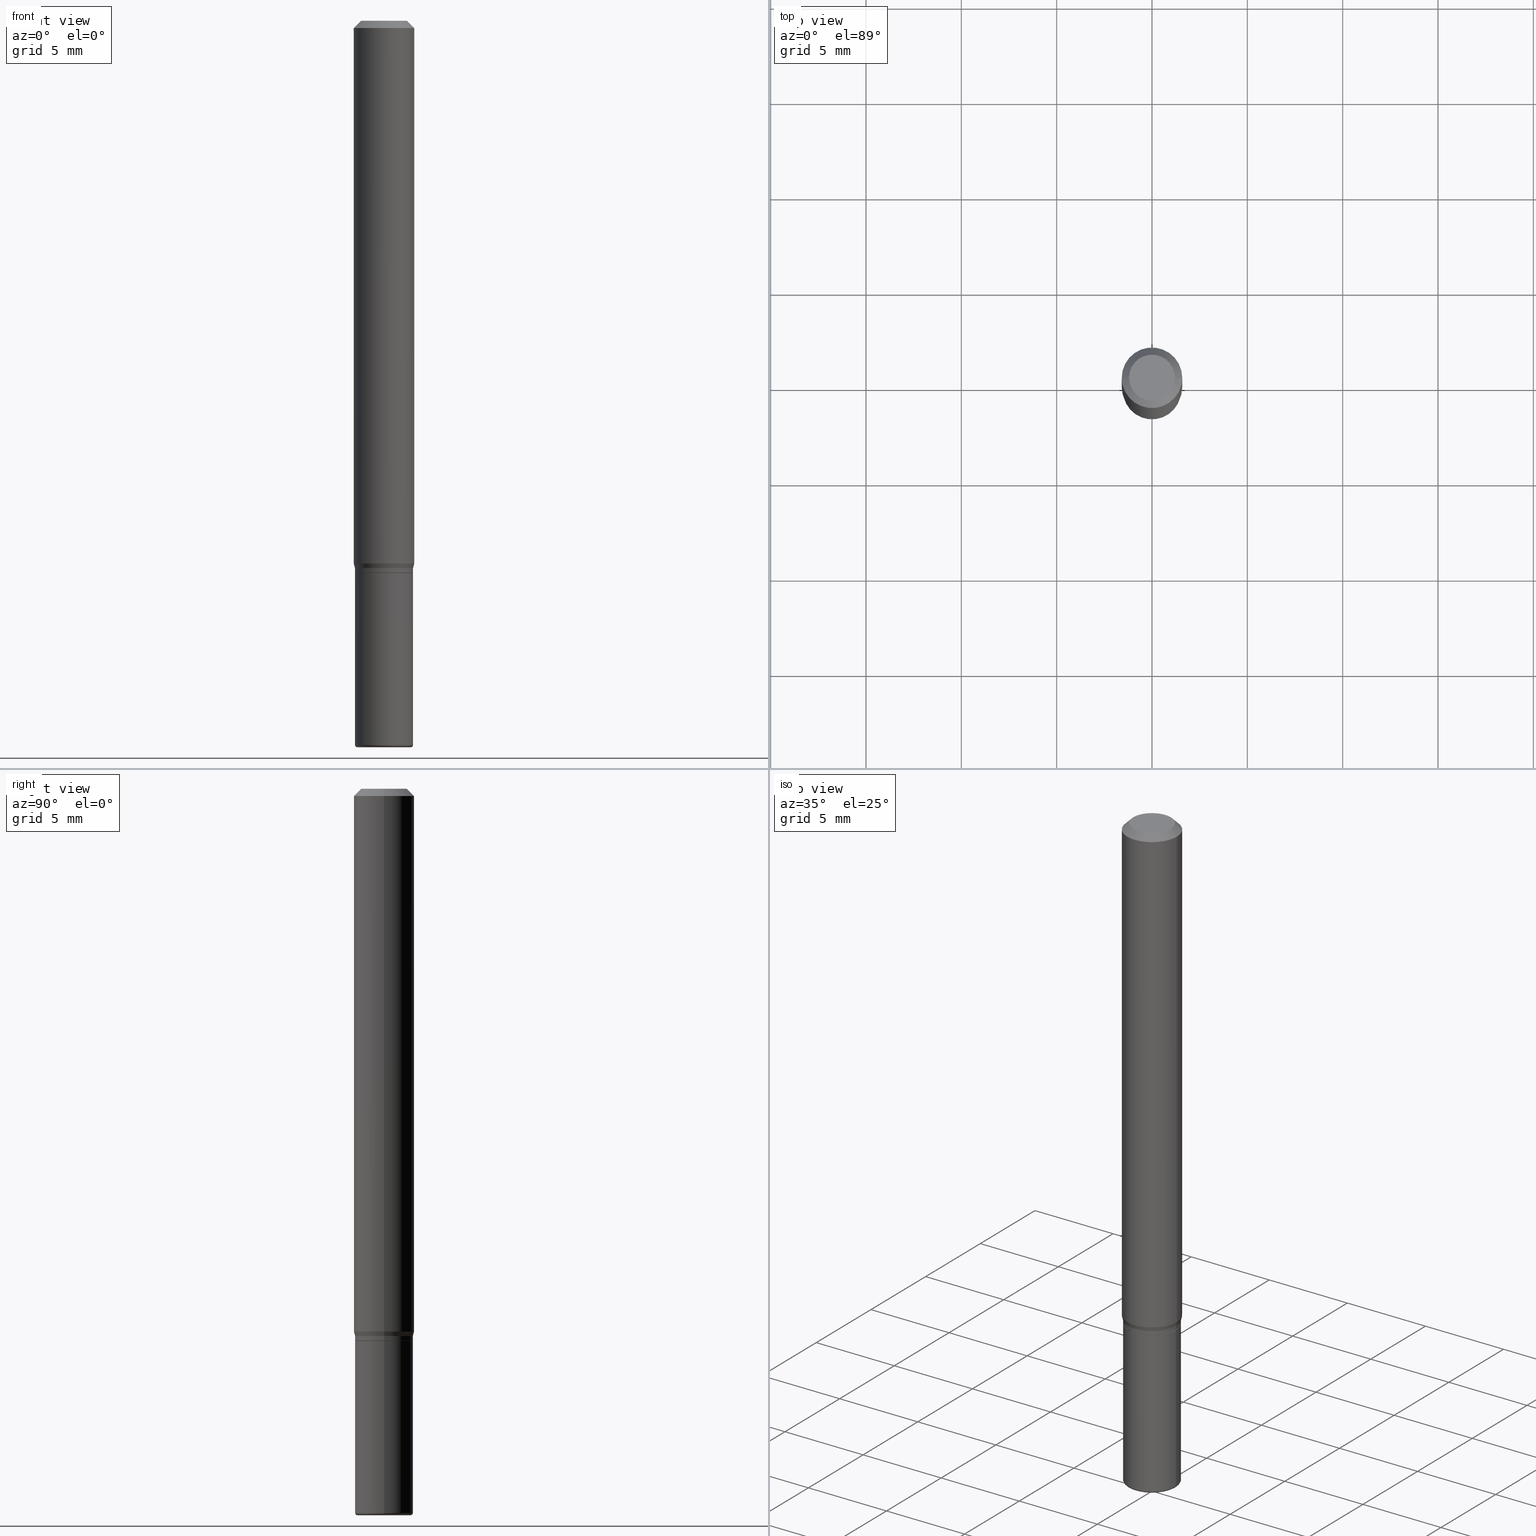
[diagram: canonical four-view strip — front | top / right | iso, engineering-drawing reading convention]
A machine part, canonical four-view strip (front | top / right | iso — engineering-drawing reading convention). The complete STEP part file that produces these views, byte-faithful:
ISO-10303-21;
HEADER;
FILE_DESCRIPTION (( 'STEP AP203' ),
    '1' );
FILE_NAME ('09117.STEP',
    '2024-02-29T22:18:57',
    ( '' ),
    ( '' ),
    'SwSTEP 2.0',
    'SolidWorks 2023',
    '' );
FILE_SCHEMA (( 'CONFIG_CONTROL_DESIGN' ));
ENDSEC;

DATA;
#1 = CARTESIAN_POINT ( 'NONE',  ( 3.668203209277632395E-31, -5.237222008264614861E-17, -0.01499999999999970281 ) ) ;
#2 = ORIENTED_EDGE ( 'NONE', *, *, #144, .T. ) ;
#3 = PLANE ( 'NONE',  #282 ) ;
#4 = AXIS2_PLACEMENT_3D ( 'NONE', #1, #440, #362 ) ;
#5 = DIRECTION ( 'NONE',  ( -2.445468806185136597E-29, 3.491481338843145583E-15, 1.000000000000000000 ) ) ;
#6 = CARTESIAN_POINT ( 'NONE',  ( 2.786611704647963748E-29, -3.978542985611765194E-15, -1.139500000000000179 ) ) ;
#7 = EDGE_CURVE ( 'NONE', #323, #98, #393, .T. ) ;
#8 = LINE ( 'NONE', #285, #330 ) ;
#9 = AXIS2_PLACEMENT_3D ( 'NONE', #295, #245, #153 ) ;
#10 = DIRECTION ( 'NONE',  ( 1.000000000000000000, -6.982962677686263555E-15, 0.000000000000000000 ) ) ;
#11 = DIRECTION ( 'NONE',  ( -2.445468806185136597E-29, 3.491481338843145583E-15, 1.000000000000000000 ) ) ;
#12 = EDGE_CURVE ( 'NONE', #110, #432, #456, .T. ) ;
#13 = CARTESIAN_POINT ( 'NONE',  ( -0.06250000000000000000, -3.468708738667091453E-15, -1.120669872981078452 ) ) ;
#14 = CLOSED_SHELL ( 'NONE', ( #157, #455, #392, #276, #473, #449 ) ) ;
#15 = CARTESIAN_POINT ( 'NONE',  ( 3.655975865246779122E-29, -5.219764601570503141E-15, -1.495000000000000107 ) ) ;
#16 = ORIENTED_EDGE ( 'NONE', *, *, #117, .F. ) ;
#17 = VECTOR ( 'NONE', #156, 39.37007874015748143 ) ;
#18 = DIRECTION ( 'NONE',  ( -2.445468806185136597E-29, 3.491481338843145583E-15, 1.000000000000000000 ) ) ;
#19 = VERTEX_POINT ( 'NONE', #188 ) ;
#20 = DIRECTION ( 'NONE',  ( 1.000000000000000000, -6.982962677686268288E-15, 0.000000000000000000 ) ) ;
#21 = CARTESIAN_POINT ( 'NONE',  ( -0.06000000000000009492, 4.263256414560607860E-16, -2.951361054152947967E-30 ) ) ;
#22 = APPROVAL_DATE_TIME ( #29, #300 ) ;
#23 = DIRECTION ( 'NONE',  ( 1.000000000000000000, -6.982962677686273810E-15, 0.000000000000000000 ) ) ;
#24 = CIRCLE ( 'NONE', #308, 0.06250000000000000000 ) ;
#25 = PERSON_AND_ORGANIZATION ( #216, #406 ) ;
#26 = CARTESIAN_POINT ( 'NONE',  ( 0.06250000000000000000, -4.811533449433669144E-16, -0.01499999999999970281 ) ) ;
#27 = SECURITY_CLASSIFICATION_LEVEL ( 'unclassified' ) ;
#28 = FACE_OUTER_BOUND ( 'NONE', #453, .T. ) ;
#29 = DATE_AND_TIME ( #268, #39 ) ;
#30 = ORIENTED_EDGE ( 'NONE', *, *, #219, .T. ) ;
#31 = DIRECTION ( 'NONE',  ( -2.445468806185136597E-29, 3.491481338843145583E-15, 1.000000000000000000 ) ) ;
#32 = VERTEX_POINT ( 'NONE', #416 ) ;
#33 = ORIENTED_EDGE ( 'NONE', *, *, #181, .T. ) ;
#34 = DIRECTION ( 'NONE',  ( -2.445468806185136597E-29, 3.491481338843145583E-15, 1.000000000000000000 ) ) ;
#35 = AXIS2_PLACEMENT_3D ( 'NONE', #195, #205, #311 ) ;
#36 = ORIENTED_EDGE ( 'NONE', *, *, #164, .F. ) ;
#37 = CARTESIAN_POINT ( 'NONE',  ( 3.668203209277632395E-31, -5.237222008264614861E-17, -0.01499999999999970281 ) ) ;
#38 = DIRECTION ( 'NONE',  ( -2.445468806185136597E-29, 3.491481338843145583E-15, 1.000000000000000000 ) ) ;
#39 = LOCAL_TIME ( 17, 18, 57.00000000000000000, #396 ) ;
#40 = DIRECTION ( 'NONE',  ( 1.000000000000000000, -6.982962677686268288E-15, 0.000000000000000000 ) ) ;
#41 = CIRCLE ( 'NONE', #112, 0.05999999999999999778 ) ;
#42 = DIRECTION ( 'NONE',  ( 1.000000000000000000, -6.982962677686266711E-15, 4.876176775795935793E-29 ) ) ;
#43 = DIMENSIONAL_EXPONENTS ( 1.000000000000000000, 0.000000000000000000, 0.000000000000000000, 0.000000000000000000, 0.000000000000000000, 0.000000000000000000, 0.000000000000000000 ) ;
#44 = EDGE_CURVE ( 'NONE', #100, #19, #86, .T. ) ;
#45 = DIRECTION ( 'NONE',  ( -0.2588190451025235705, 5.211531920934563664E-15, 0.9659258262890674240 ) ) ;
#46 = CLOSED_SHELL ( 'NONE', ( #214, #99, #287, #373, #227, #150, #441, #62, #360, #66, #203, #194 ) ) ;
#47 = ORIENTED_EDGE ( 'NONE', *, *, #313, .F. ) ;
#48 = CARTESIAN_POINT ( 'NONE',  ( 0.000000000000000000, 0.000000000000000000, 0.000000000000000000 ) ) ;
#49 = AXIS2_PLACEMENT_3D ( 'NONE', #233, #259, #10 ) ;
#50 = VECTOR ( 'NONE', #250, 39.37007874015748143 ) ;
#51 = DIRECTION ( 'NONE',  ( 1.000000000000000000, -6.982962677686266711E-15, 0.000000000000000000 ) ) ;
#52 = CARTESIAN_POINT ( 'NONE',  ( 2.787834439051055989E-29, -3.980288726281186698E-15, -1.140000000000000124 ) ) ;
#53 = VERTEX_POINT ( 'NONE', #306 ) ;
#54 = FACE_OUTER_BOUND ( 'NONE', #419, .T. ) ;
#55 = ORIENTED_EDGE ( 'NONE', *, *, #366, .T. ) ;
#56 = CC_DESIGN_PERSON_AND_ORGANIZATION_ASSIGNMENT ( #25, #468, ( #211 ) ) ;
#57 = CARTESIAN_POINT ( 'NONE',  ( 3.582686580359767159E-29, -5.359686688179454114E-15, -1.500000000000000444 ) ) ;
#58 = CARTESIAN_POINT ( 'NONE',  ( 2.787834439051055989E-29, -3.980288726281186698E-15, -1.140000000000000124 ) ) ;
#59 = EDGE_LOOP ( 'NONE', ( #336, #231 ) ) ;
#60 = APPLICATION_CONTEXT ( 'configuration controlled 3d designs of mechanical parts and assemblies' ) ;
#61 = EDGE_LOOP ( 'NONE', ( #196, #2, #33, #436 ) ) ;
#62 = ADVANCED_FACE ( 'NONE', ( #498 ), #155, .T. ) ;
#63 = DIRECTION ( 'NONE',  ( -1.000000000000000000, 6.982962677686266711E-15, 0.000000000000000000 ) ) ;
#64 = DIRECTION ( 'NONE',  ( 1.000000000000000000, -6.982962677686268288E-15, 0.000000000000000000 ) ) ;
#65 = VECTOR ( 'NONE', #448, 39.37007874015748143 ) ;
#66 = ADVANCED_FACE ( 'NONE', ( #494 ), #265, .F. ) ;
#67 = COORDINATED_UNIVERSAL_TIME_OFFSET ( 5, 0, .BEHIND. ) ;
#68 = VECTOR ( 'NONE', #326, 39.37007874015748143 ) ;
#69 = CARTESIAN_POINT ( 'NONE',  ( 2.763379750989205565E-29, -3.945373912892755838E-15, -1.130000000000000338 ) ) ;
#70 = PERSON_AND_ORGANIZATION ( #216, #406 ) ;
#71 = DIRECTION ( 'NONE',  ( -2.445468806185136597E-29, 3.491481338843145583E-15, 1.000000000000000000 ) ) ;
#72 = EDGE_LOOP ( 'NONE', ( #472, #105, #30, #90 ) ) ;
#73 = APPROVAL_ROLE ( '' ) ;
#74 = CYLINDRICAL_SURFACE ( 'NONE', #149, 0.06000000000000007411 ) ;
#75 = PRODUCT_DEFINITION_FORMATION_WITH_SPECIFIED_SOURCE ( 'ANY', '', #374, .NOT_KNOWN. ) ;
#76 = AXIS2_PLACEMENT_3D ( 'NONE', #477, #431, #64 ) ;
#77 = DIRECTION ( 'NONE',  ( 1.000000000000000000, -6.982962677686266711E-15, 4.876176775795936353E-29 ) ) ;
#78 = LOCAL_TIME ( 17, 18, 57.00000000000000000, #384 ) ;
#79 = ORIENTED_EDGE ( 'NONE', *, *, #270, .T. ) ;
#80 = EDGE_CURVE ( 'NONE', #186, #432, #204, .T. ) ;
#81 = DIRECTION ( 'NONE',  ( -6.982962677686266711E-15, -1.000000000000000000, 3.491481338843145583E-15 ) ) ;
#82 = CC_DESIGN_PERSON_AND_ORGANIZATION_ASSIGNMENT ( #390, #426, ( #75 ) ) ;
#83 = LINE ( 'NONE', #367, #504 ) ;
#84 = EDGE_CURVE ( 'NONE', #321, #322, #339, .T. ) ;
#85 = DIRECTION ( 'NONE',  ( -2.445468806185136597E-29, 3.491481338843145583E-15, 1.000000000000000000 ) ) ;
#86 = CIRCLE ( 'NONE', #380, 0.06250000000000000000 ) ;
#87 = ORIENTED_EDGE ( 'NONE', *, *, #299, .T. ) ;
#88 = CARTESIAN_POINT ( 'NONE',  ( 3.316907271900976589E-16, 0.04750000000000000749, -2.925296391183627249E-17 ) ) ;
#89 = DIRECTION ( 'NONE',  ( 1.000000000000000000, -6.982962677686273810E-15, 0.000000000000000000 ) ) ;
#90 = ORIENTED_EDGE ( 'NONE', *, *, #144, .F. ) ;
#91 = CARTESIAN_POINT ( 'NONE',  ( -0.06250000000000000000, -1.538495874449837169E-15, -0.01499999999999970281 ) ) ;
#92 = ORIENTED_EDGE ( 'NONE', *, *, #412, .T. ) ;
#93 = CIRCLE ( 'NONE', #294, 0.005000000000000177046 ) ;
#94 = DIRECTION ( 'NONE',  ( -2.445468806185136597E-29, 3.491481338843145583E-15, 1.000000000000000000 ) ) ;
#95 = CARTESIAN_POINT ( 'NONE',  ( 2.740563216406686834E-29, -3.912797948517154069E-15, -1.120669872981078452 ) ) ;
#96 = ORIENTED_EDGE ( 'NONE', *, *, #328, .T. ) ;
#97 = ORIENTED_EDGE ( 'NONE', *, *, #261, .T. ) ;
#98 = VERTEX_POINT ( 'NONE', #146 ) ;
#99 = ADVANCED_FACE ( 'NONE', ( #136 ), #248, .T. ) ;
#100 = VERTEX_POINT ( 'NONE', #13 ) ;
#101 = AXIS2_PLACEMENT_3D ( 'NONE', #37, #485, #361 ) ;
#102 = CIRCLE ( 'NONE', #513, 0.06000000000000017819 ) ;
#103 = CIRCLE ( 'NONE', #316, 0.06000000000000006717 ) ;
#104 = APPROVAL_STATUS ( 'not_yet_approved' ) ;
#105 = ORIENTED_EDGE ( 'NONE', *, *, #135, .T. ) ;
#106 = PERSON_AND_ORGANIZATION_ROLE ( 'creator' ) ;
#107 = EDGE_CURVE ( 'NONE', #32, #110, #102, .T. ) ;
#108 = PERSON_AND_ORGANIZATION_ROLE ( 'creator' ) ;
#109 = DIRECTION ( 'NONE',  ( -2.445468806185136597E-29, 3.491481338843145583E-15, 1.000000000000000000 ) ) ;
#110 = VERTEX_POINT ( 'NONE', #140 ) ;
#111 = DATE_AND_TIME ( #516, #249 ) ;
#112 = AXIS2_PLACEMENT_3D ( 'NONE', #327, #368, #40 ) ;
#113 = LINE ( 'NONE', #278, #162 ) ;
#114 = CC_DESIGN_PERSON_AND_ORGANIZATION_ASSIGNMENT ( #304, #264, ( #374 ) ) ;
#115 = FACE_OUTER_BOUND ( 'NONE', #126, .T. ) ;
#116 = ORIENTED_EDGE ( 'NONE', *, *, #506, .T. ) ;
#117 = EDGE_CURVE ( 'NONE', #458, #110, #241, .T. ) ;
#118 = CARTESIAN_POINT ( 'NONE',  ( 3.668203209277706016E-29, -5.237222008264719754E-15, -1.500000000000000444 ) ) ;
#119 = ORIENTED_EDGE ( 'NONE', *, *, #135, .F. ) ;
#120 = ORIENTED_EDGE ( 'NONE', *, *, #44, .T. ) ;
#121 = LOCAL_TIME ( 17, 18, 57.00000000000000000, #314 ) ;
#122 = FACE_OUTER_BOUND ( 'NONE', #59, .T. ) ;
#123 = ORIENTED_EDGE ( 'NONE', *, *, #251, .T. ) ;
#124 = VERTEX_POINT ( 'NONE', #199 ) ;
#125 = CARTESIAN_POINT ( 'NONE',  ( -6.680649051745406845E-45, 9.538196290434862081E-31, 2.731847993664263218E-16 ) ) ;
#126 = EDGE_LOOP ( 'NONE', ( #79, #96, #36, #269 ) ) ;
#127 = DIRECTION ( 'NONE',  ( -1.000000000000000000, 6.982962677686265922E-15, -4.876176775795935793E-29 ) ) ;
#128 = ORIENTED_EDGE ( 'NONE', *, *, #84, .F. ) ;
#129 = EDGE_CURVE ( 'NONE', #323, #190, #280, .T. ) ;
#130 = ORIENTED_EDGE ( 'NONE', *, *, #366, .F. ) ;
#131 = DIRECTION ( 'NONE',  ( -2.445468806185136877E-29, 3.491481338843145188E-15, 1.000000000000000000 ) ) ;
#132 = AXIS2_PLACEMENT_3D ( 'NONE', #512, #281, #466 ) ;
#133 = CARTESIAN_POINT ( 'NONE',  ( 0.05500000000000000028, -5.603827548843247337E-15, -1.495000000000000107 ) ) ;
#134 = APPROVAL_STATUS ( 'not_yet_approved' ) ;
#135 = EDGE_CURVE ( 'NONE', #322, #321, #307, .T. ) ;
#136 = FACE_OUTER_BOUND ( 'NONE', #200, .T. ) ;
#137 = DIRECTION ( 'NONE',  ( -2.438088387897960049E-29, 3.491481338843145188E-15, 1.000000000000000000 ) ) ;
#138 = ORIENTED_EDGE ( 'NONE', *, *, #129, .T. ) ;
#139 = CIRCLE ( 'NONE', #49, 0.05499999999999999334 ) ;
#140 = CARTESIAN_POINT ( 'NONE',  ( -0.06000000000000017125, -4.173701022469782852E-15, -1.495000000000000107 ) ) ;
#141 = VECTOR ( 'NONE', #353, 39.37007874015748143 ) ;
#142 = APPLICATION_PROTOCOL_DEFINITION ( 'international standard', 'config_control_design', 1994, #492 ) ;
#143 = ORIENTED_EDGE ( 'NONE', *, *, #387, .F. ) ;
#144 = EDGE_CURVE ( 'NONE', #462, #124, #222, .T. ) ;
#145 = DIRECTION ( 'NONE',  ( 1.000000000000000000, -6.982962677686266711E-15, 4.876176775795935793E-29 ) ) ;
#146 = CARTESIAN_POINT ( 'NONE',  ( -0.04750000000000000749, 3.578768372314221353E-16, 2.731847993664239060E-16 ) ) ;
#147 = ORIENTED_EDGE ( 'NONE', *, *, #117, .T. ) ;
#148 = EDGE_LOOP ( 'NONE', ( #302, #138, #116, #357 ) ) ;
#149 = AXIS2_PLACEMENT_3D ( 'NONE', #151, #34, #347 ) ;
#150 = ADVANCED_FACE ( 'NONE', ( #358 ), #407, .T. ) ;
#151 = CARTESIAN_POINT ( 'NONE',  ( 0.000000000000000000, 0.000000000000000000, 0.000000000000000000 ) ) ;
#152 = DATE_AND_TIME ( #238, #121 ) ;
#153 = DIRECTION ( 'NONE',  ( -1.000000000000000000, 7.105427357601061812E-15, 0.000000000000000000 ) ) ;
#154 = CARTESIAN_POINT ( 'NONE',  ( 2.786611704647963748E-29, -3.978542985611765194E-15, -1.139500000000000179 ) ) ;
#155 = CONICAL_SURFACE ( 'NONE', #445, 0.06250000000000000000, 0.7853981633974488341 ) ;
#156 = DIRECTION ( 'NONE',  ( 0.7071067811865479058, -7.319954787623257623E-15, -0.7071067811865471286 ) ) ;
#157 = ADVANCED_FACE ( 'NONE', ( #28 ), #332, .T. ) ;
#158 = PERSON_AND_ORGANIZATION ( #216, #406 ) ;
#159 = DIRECTION ( 'NONE',  ( 1.000000000000000000, -6.982962677686262766E-15, 0.000000000000000000 ) ) ;
#160 = ORIENTED_EDGE ( 'NONE', *, *, #173, .T. ) ;
#161 = CARTESIAN_POINT ( 'NONE',  ( 0.000000000000000000, 0.000000000000000000, 0.000000000000000000 ) ) ;
#162 = VECTOR ( 'NONE', #475, 39.37007874015748143 ) ;
#163 = FACE_OUTER_BOUND ( 'NONE', #148, .T. ) ;
#164 = EDGE_CURVE ( 'NONE', #53, #350, #398, .T. ) ;
#165 = CARTESIAN_POINT ( 'NONE',  ( 0.05950000000000009448, -4.395775005603519536E-15, -1.140000000000000124 ) ) ;
#166 = PLANE ( 'NONE',  #202 ) ;
#167 = DIRECTION ( 'NONE',  ( 2.438088387897960049E-29, -3.491481338843145188E-15, -1.000000000000000000 ) ) ;
#168 = CONICAL_SURFACE ( 'NONE', #132, 0.05950000000000009448, 0.7853981633975507526 ) ;
#169 = AXIS2_PLACEMENT_3D ( 'NONE', #48, #221, #497 ) ;
#170 = ORIENTED_EDGE ( 'NONE', *, *, #382, .T. ) ;
#171 = ORIENTED_EDGE ( 'NONE', *, *, #209, .T. ) ;
#172 = PRODUCT_DEFINITION ( 'UNKNOWN', '', #75, #207 ) ;
#173 = EDGE_CURVE ( 'NONE', #458, #284, #471, .T. ) ;
#174 = PERSON_AND_ORGANIZATION ( #216, #406 ) ;
#175 = DIRECTION ( 'NONE',  ( -2.445468806185136597E-29, 3.491481338843145583E-15, 1.000000000000000000 ) ) ;
#176 = DIRECTION ( 'NONE',  ( 1.000000000000000000, -6.982962677686263555E-15, 4.883557194083111780E-29 ) ) ;
#177 = CARTESIAN_POINT ( 'NONE',  ( 3.655975865246779122E-29, -5.219764601570503141E-15, -1.495000000000000107 ) ) ;
#178 = FACE_OUTER_BOUND ( 'NONE', #423, .T. ) ;
#179 = CC_DESIGN_APPROVAL ( #300, ( #211 ) ) ;
#180 = ORIENTED_EDGE ( 'NONE', *, *, #237, .F. ) ;
#181 = EDGE_CURVE ( 'NONE', #124, #53, #349, .T. ) ;
#182 = AXIS2_PLACEMENT_3D ( 'NONE', #239, #71, #437 ) ;
#183 = ORIENTED_EDGE ( 'NONE', *, *, #107, .T. ) ;
#184 =( NAMED_UNIT ( * ) SI_UNIT ( $, .STERADIAN. ) SOLID_ANGLE_UNIT ( ) );
#185 = ORIENTED_EDGE ( 'NONE', *, *, #511, .T. ) ;
#186 = VERTEX_POINT ( 'NONE', #510 ) ;
#187 = FACE_OUTER_BOUND ( 'NONE', #218, .T. ) ;
#188 = CARTESIAN_POINT ( 'NONE',  ( 0.06250000000000000000, -4.349233115872545739E-15, -1.120669872981078452 ) ) ;
#189 = DATE_AND_TIME ( #277, #78 ) ;
#190 = VERTEX_POINT ( 'NONE', #191 ) ;
#191 = CARTESIAN_POINT ( 'NONE',  ( 0.06250000000000000000, -4.888073874380378612E-16, -0.01499999999999970281 ) ) ;
#192 = LOCAL_TIME ( 17, 18, 57.00000000000000000, #67 ) ;
#193 = AXIS2_PLACEMENT_3D ( 'NONE', #397, #271, #425 ) ;
#194 = ADVANCED_FACE ( 'NONE', ( #434 ), #309, .T. ) ;
#195 = CARTESIAN_POINT ( 'NONE',  ( 2.787834439051055989E-29, -3.980288726281186698E-15, -1.140000000000000124 ) ) ;
#196 = ORIENTED_EDGE ( 'NONE', *, *, #328, .F. ) ;
#197 = APPROVAL_STATUS ( 'not_yet_approved' ) ;
#198 = DIRECTION ( 'NONE',  ( -2.445468806185136597E-29, 3.491481338843145583E-15, 1.000000000000000000 ) ) ;
#199 = CARTESIAN_POINT ( 'NONE',  ( 0.06000000000000009492, -4.397520746272941828E-15, -1.139500000000000179 ) ) ;
#200 = EDGE_LOOP ( 'NONE', ( #400, #171, #478, #345 ) ) ;
#201 = ORIENTED_EDGE ( 'NONE', *, *, #44, .F. ) ;
#202 = AXIS2_PLACEMENT_3D ( 'NONE', #88, #329, #127 ) ;
#203 = ADVANCED_FACE ( 'NONE', ( #318 ), #168, .T. ) ;
#204 = CIRCLE ( 'NONE', #364, 0.05999999999999999778 ) ;
#205 = DIRECTION ( 'NONE',  ( -2.445468806185136597E-29, 3.491481338843145583E-15, 1.000000000000000000 ) ) ;
#206 = ORIENTED_EDGE ( 'NONE', *, *, #344, .F. ) ;
#207 = DESIGN_CONTEXT ( 'detailed design', #60, 'design' ) ;
#208 = CARTESIAN_POINT ( 'NONE',  ( 4.189777606612038494E-16, 0.05999999999999602179, -1.140000000000000346 ) ) ;
#209 = EDGE_CURVE ( 'NONE', #322, #462, #113, .T. ) ;
#210 = FACE_OUTER_BOUND ( 'NONE', #422, .T. ) ;
#211 = SECURITY_CLASSIFICATION ( '', '', #27 ) ;
#212 = VECTOR ( 'NONE', #480, 39.37007874015748143 ) ;
#213 = FACE_OUTER_BOUND ( 'NONE', #359, .T. ) ;
#214 = ADVANCED_FACE ( 'NONE', ( #115 ), #74, .T. ) ;
#215 = DIRECTION ( 'NONE',  ( -2.445468806185136597E-29, 3.491481338843145583E-15, 1.000000000000000000 ) ) ;
#216 = PERSON ( 'UNSPECIFIED', 'UNSPECIFIED', 'UNSPECIFIED', ('UNSPECIFIED'), ('UNSPECIFIED'), ('UNSPECIFIED') ) ;
#217 = CARTESIAN_POINT ( 'NONE',  ( -0.06250000000000000000, 3.840629472727455270E-16, -0.01499999999999970281 ) ) ;
#218 = EDGE_LOOP ( 'NONE', ( #183, #501, #435, #312 ) ) ;
#219 = EDGE_CURVE ( 'NONE', #321, #124, #247, .T. ) ;
#220 = AXIS2_PLACEMENT_3D ( 'NONE', #420, #94, #145 ) ;
#221 = DIRECTION ( 'NONE',  ( 0.000000000000000000, 0.000000000000000000, 1.000000000000000000 ) ) ;
#222 = CIRCLE ( 'NONE', #288, 0.06000000000000009492 ) ;
#223 = CARTESIAN_POINT ( 'NONE',  ( 0.000000000000000000, 0.000000000000000000, 0.000000000000000000 ) ) ;
#224 = DIRECTION ( 'NONE',  ( -2.445468806185136597E-29, 3.491481338843145583E-15, 1.000000000000000000 ) ) ;
#225 = APPROVAL ( #134, 'UNSPECIFIED' ) ;
#226 = CYLINDRICAL_SURFACE ( 'NONE', #220, 0.06250000000000000000 ) ;
#227 = ADVANCED_FACE ( 'NONE', ( #463 ), #254, .T. ) ;
#228 = ORIENTED_EDGE ( 'NONE', *, *, #251, .F. ) ;
#229 = ORIENTED_EDGE ( 'NONE', *, *, #511, .F. ) ;
#230 = APPROVAL_PERSON_ORGANIZATION ( #174, #225, #508 ) ;
#231 = ORIENTED_EDGE ( 'NONE', *, *, #7, .T. ) ;
#232 = DIRECTION ( 'NONE',  ( -2.438088387897960049E-29, 3.491481338843145188E-15, 1.000000000000000000 ) ) ;
#233 = CARTESIAN_POINT ( 'NONE',  ( 3.668203209277706016E-29, -5.237222008264719754E-15, -1.500000000000000444 ) ) ;
#234 = ORIENTED_EDGE ( 'NONE', *, *, #433, .T. ) ;
#235 = DATE_TIME_ROLE ( 'creation_date' ) ;
#236 = DIRECTION ( 'NONE',  ( -2.445468806185136597E-29, 3.491481338843145583E-15, 1.000000000000000000 ) ) ;
#237 = EDGE_CURVE ( 'NONE', #19, #100, #482, .T. ) ;
#238 = CALENDAR_DATE ( 2024, 29, 2 ) ;
#239 = CARTESIAN_POINT ( 'NONE',  ( 2.763379750989205565E-29, -3.945373912892755838E-15, -1.130000000000000338 ) ) ;
#240 = AXIS2_PLACEMENT_3D ( 'NONE', #15, #18, #176 ) ;
#241 = CIRCLE ( 'NONE', #9, 0.005000000000000177046 ) ;
#242 = DATE_TIME_ROLE ( 'classification_date' ) ;
#243 = DIRECTION ( 'NONE',  ( -2.445468806185136597E-29, 3.491481338843145583E-15, 1.000000000000000000 ) ) ;
#244 = PERSON_AND_ORGANIZATION ( #216, #406 ) ;
#245 = DIRECTION ( 'NONE',  ( 7.105427357601001859E-15, 1.000000000000000000, -3.491481338843145583E-15 ) ) ;
#246 = AXIS2_PLACEMENT_3D ( 'NONE', #260, #298, #340 ) ;
#247 = LINE ( 'NONE', #517, #50 ) ;
#248 = CONICAL_SURFACE ( 'NONE', #505, 0.05950000000000009448, 0.7853981633975507526 ) ;
#249 = LOCAL_TIME ( 17, 18, 57.00000000000000000, #464 ) ;
#250 = DIRECTION ( 'NONE',  ( 0.7071067811866199593, -2.468850131083015945E-15, 0.7071067811864750752 ) ) ;
#251 = EDGE_CURVE ( 'NONE', #53, #19, #320, .T. ) ;
#252 = CARTESIAN_POINT ( 'NONE',  ( 0.05499999999999999334, -5.621284955537463950E-15, -1.500000000000000444 ) ) ;
#253 = DIRECTION ( 'NONE',  ( 1.000000000000000000, -6.982962677686265922E-15, 4.876176775795935793E-29 ) ) ;
#254 = CONICAL_SURFACE ( 'NONE', #193, 0.06000000000000006717, 0.2617993877991523499 ) ;
#255 = LINE ( 'NONE', #483, #68 ) ;
#256 = FACE_OUTER_BOUND ( 'NONE', #395, .T. ) ;
#257 = ORIENTED_EDGE ( 'NONE', *, *, #80, .T. ) ;
#258 =( CONVERSION_BASED_UNIT ( 'INCH', #301 ) LENGTH_UNIT ( ) NAMED_UNIT ( #43 ) );
#259 = DIRECTION ( 'NONE',  ( -2.445468806185136597E-29, 3.491481338843145583E-15, 1.000000000000000000 ) ) ;
#260 = CARTESIAN_POINT ( 'NONE',  ( -6.680649051745406845E-45, 9.538196290434862081E-31, 2.731847993664263218E-16 ) ) ;
#261 = EDGE_CURVE ( 'NONE', #350, #53, #103, .T. ) ;
#262 = ORIENTED_EDGE ( 'NONE', *, *, #348, .F. ) ;
#263 = CARTESIAN_POINT ( 'NONE',  ( 3.668203209277632395E-31, -5.237222008264614861E-17, -0.01499999999999970281 ) ) ;
#264 = PERSON_AND_ORGANIZATION_ROLE ( 'design_owner' ) ;
#265 = PLANE ( 'NONE',  #413 ) ;
#266 = CC_DESIGN_PERSON_AND_ORGANIZATION_ASSIGNMENT ( #430, #106, ( #172 ) ) ;
#267 = ORIENTED_EDGE ( 'NONE', *, *, #348, .T. ) ;
#268 = CALENDAR_DATE ( 2024, 29, 2 ) ;
#269 = ORIENTED_EDGE ( 'NONE', *, *, #181, .F. ) ;
#270 = EDGE_CURVE ( 'NONE', #124, #462, #399, .T. ) ;
#271 = DIRECTION ( 'NONE',  ( -2.445468806185136597E-29, 3.491481338843145583E-15, 1.000000000000000000 ) ) ;
#272 = DATE_AND_TIME ( #279, #192 ) ;
#273 = CARTESIAN_POINT ( 'NONE',  ( 0.06000000000000006717, -4.364351673553932471E-15, -1.130000000000000338 ) ) ;
#274 = AXIS2_PLACEMENT_3D ( 'NONE', #125, #38, #333 ) ;
#275 = UNCERTAINTY_MEASURE_WITH_UNIT (LENGTH_MEASURE( 1.000000000000000082E-05 ), #258, 'distance_accuracy_value', 'NONE');
#276 = ADVANCED_FACE ( 'NONE', ( #213 ), #402, .T. ) ;
#277 = CALENDAR_DATE ( 2024, 29, 2 ) ;
#278 = CARTESIAN_POINT ( 'NONE',  ( -0.05950000000000009448, -3.557515798503926317E-15, -1.140000000000000124 ) ) ;
#279 = CALENDAR_DATE ( 2024, 29, 2 ) ;
#280 = LINE ( 'NONE', #26, #17 ) ;
#281 = DIRECTION ( 'NONE',  ( -2.445468806185136597E-29, 3.491481338843145583E-15, 1.000000000000000000 ) ) ;
#282 = AXIS2_PLACEMENT_3D ( 'NONE', #208, #167, #443 ) ;
#283 = CARTESIAN_POINT ( 'NONE',  ( 0.06250000000000000000, -4.364351673553916694E-16, 3.047610484872459871E-30 ) ) ;
#284 = VERTEX_POINT ( 'NONE', #252 ) ;
#285 = CARTESIAN_POINT ( 'NONE',  ( -0.06000000000000006717, -3.519048271436695347E-15, -1.130000000000000338 ) ) ;
#286 = CARTESIAN_POINT ( 'NONE',  ( 0.000000000000000000, 0.000000000000000000, 0.000000000000000000 ) ) ;
#287 = ADVANCED_FACE ( 'NONE', ( #163 ), #452, .T. ) ;
#288 = AXIS2_PLACEMENT_3D ( 'NONE', #154, #198, #23 ) ;
#289 = CARTESIAN_POINT ( 'NONE',  ( -0.05999999999999999778, -4.173701022469784429E-15, -1.140000000000000124 ) ) ;
#290 = DIRECTION ( 'NONE',  ( 1.000000000000000000, -6.982962677686280121E-15, 0.000000000000000000 ) ) ;
#291 = PLANE ( 'NONE',  #346 ) ;
#292 = ORIENTED_EDGE ( 'NONE', *, *, #164, .T. ) ;
#293 = AXIS2_PLACEMENT_3D ( 'NONE', #286, #215, #42 ) ;
#294 = AXIS2_PLACEMENT_3D ( 'NONE', #133, #81, #290 ) ;
#295 = CARTESIAN_POINT ( 'NONE',  ( -0.05500000000000000028, -4.828966096902448481E-15, -1.495000000000000107 ) ) ;
#296 = MANIFOLD_SOLID_BREP ( 'Body-Move/Copy2[1]', #14 ) ;
#297 = MECHANICAL_CONTEXT ( 'NONE', #492, 'mechanical' ) ;
#298 = DIRECTION ( 'NONE',  ( -2.445468806185136597E-29, 3.491481338843145583E-15, 1.000000000000000000 ) ) ;
#299 = EDGE_CURVE ( 'NONE', #284, #32, #93, .T. ) ;
#300 = APPROVAL ( #197, 'UNSPECIFIED' ) ;
#301 = LENGTH_MEASURE_WITH_UNIT ( LENGTH_MEASURE( 0.02539999999999999897 ), #338 );
#302 = ORIENTED_EDGE ( 'NONE', *, *, #7, .F. ) ;
#303 = ADVANCED_BREP_SHAPE_REPRESENTATION ( '09117', ( #296, #486, #169 ), #487 ) ;
#304 = PERSON_AND_ORGANIZATION ( #216, #406 ) ;
#305 = CIRCLE ( 'NONE', #101, 0.06250000000000000000 ) ;
#306 = CARTESIAN_POINT ( 'NONE',  ( 0.06000000000000006717, -4.364351673553932471E-15, -1.130000000000000338 ) ) ;
#307 = CIRCLE ( 'NONE', #35, 0.05950000000000009448 ) ;
#308 = AXIS2_PLACEMENT_3D ( 'NONE', #415, #11, #51 ) ;
#309 = CYLINDRICAL_SURFACE ( 'NONE', #429, 0.06000000000000007411 ) ;
#310 = APPROVAL_DATE_TIME ( #189, #493 ) ;
#311 = DIRECTION ( 'NONE',  ( 1.000000000000000000, -6.982962677686265133E-15, 0.000000000000000000 ) ) ;
#312 = ORIENTED_EDGE ( 'NONE', *, *, #412, .F. ) ;
#313 = EDGE_CURVE ( 'NONE', #100, #454, #255, .T. ) ;
#314 = COORDINATED_UNIVERSAL_TIME_OFFSET ( 5, 0, .BEHIND. ) ;
#315 = DIRECTION ( 'NONE',  ( -2.445468806185136597E-29, 3.491481338843145583E-15, 1.000000000000000000 ) ) ;
#316 = AXIS2_PLACEMENT_3D ( 'NONE', #69, #243, #365 ) ;
#317 = EDGE_LOOP ( 'NONE', ( #465, #97, #123, #201 ) ) ;
#318 = FACE_OUTER_BOUND ( 'NONE', #72, .T. ) ;
#319 = APPROVAL_ROLE ( '' ) ;
#320 = LINE ( 'NONE', #273, #488 ) ;
#321 = VERTEX_POINT ( 'NONE', #165 ) ;
#322 = VERTEX_POINT ( 'NONE', #401 ) ;
#323 = VERTEX_POINT ( 'NONE', #408 ) ;
#324 = CARTESIAN_POINT ( 'NONE',  ( -0.06000000000000007411, 4.263256414560606381E-16, -2.951361054152947267E-30 ) ) ;
#325 = AXIS2_PLACEMENT_3D ( 'NONE', #161, #5, #253 ) ;
#326 = DIRECTION ( 'NONE',  ( -2.445468806185136877E-29, 3.491481338843145188E-15, 1.000000000000000000 ) ) ;
#327 = CARTESIAN_POINT ( 'NONE',  ( 2.787834439051055989E-29, -3.980288726281186698E-15, -1.140000000000000124 ) ) ;
#328 = EDGE_CURVE ( 'NONE', #462, #350, #410, .T. ) ;
#329 = DIRECTION ( 'NONE',  ( 2.438088387897960049E-29, -3.491481338843145188E-15, -1.000000000000000000 ) ) ;
#330 = VECTOR ( 'NONE', #45, 39.37007874015748143 ) ;
#331 = EDGE_LOOP ( 'NONE', ( #292, #170, #180, #228 ) ) ;
#332 = TOROIDAL_SURFACE ( 'NONE', #439, 0.05500000000000000028, 0.005000000000000177046 ) ;
#333 = DIRECTION ( 'NONE',  ( 1.000000000000000000, -6.982962677686266711E-15, 4.852736867747365086E-29 ) ) ;
#334 = CARTESIAN_POINT ( 'NONE',  ( -0.05499999999999999334, -4.819931231855553084E-15, -1.500000000000000444 ) ) ;
#335 = DIRECTION ( 'NONE',  ( 2.445468806185136597E-29, -3.491481338843145583E-15, -1.000000000000000000 ) ) ;
#336 = ORIENTED_EDGE ( 'NONE', *, *, #344, .T. ) ;
#337 = DIRECTION ( 'NONE',  ( -2.445468806185136597E-29, 3.491481338843145583E-15, 1.000000000000000000 ) ) ;
#338 =( LENGTH_UNIT ( ) NAMED_UNIT ( * ) SI_UNIT ( $, .METRE. ) );
#339 = CIRCLE ( 'NONE', #389, 0.05950000000000009448 ) ;
#340 = DIRECTION ( 'NONE',  ( 1.000000000000000000, -6.982962677686266711E-15, 4.852736867747365086E-29 ) ) ;
#341 = VECTOR ( 'NONE', #378, 39.37007874015748143 ) ;
#342 = DIRECTION ( 'NONE',  ( 1.000000000000000000, -6.982962677686265922E-15, 4.876176775795935793E-29 ) ) ;
#343 = CARTESIAN_POINT ( 'NONE',  ( 2.787834439051055989E-29, -3.980288726281186698E-15, -1.140000000000000124 ) ) ;
#344 = EDGE_CURVE ( 'NONE', #98, #323, #496, .T. ) ;
#345 = ORIENTED_EDGE ( 'NONE', *, *, #219, .F. ) ;
#346 = AXIS2_PLACEMENT_3D ( 'NONE', #57, #137, #502 ) ;
#347 = DIRECTION ( 'NONE',  ( 1.000000000000000000, -6.982962677686266711E-15, 4.876176775795936353E-29 ) ) ;
#348 = EDGE_CURVE ( 'NONE', #432, #186, #41, .T. ) ;
#349 = LINE ( 'NONE', #356, #141 ) ;
#350 = VERTEX_POINT ( 'NONE', #484 ) ;
#351 = ORIENTED_EDGE ( 'NONE', *, *, #129, .F. ) ;
#352 = SHAPE_DEFINITION_REPRESENTATION ( #467, #303 ) ;
#353 = DIRECTION ( 'NONE',  ( -2.445468806185136877E-29, 3.491481338843145188E-15, 1.000000000000000000 ) ) ;
#354 = CC_DESIGN_DATE_AND_TIME_ASSIGNMENT ( #272, #242, ( #211 ) ) ;
#355 = VECTOR ( 'NONE', #489, 39.37007874015748143 ) ;
#356 = CARTESIAN_POINT ( 'NONE',  ( 0.06000000000000007411, -4.189777606611765351E-16, 2.925706065477565259E-30 ) ) ;
#357 = ORIENTED_EDGE ( 'NONE', *, *, #433, .F. ) ;
#358 = FACE_OUTER_BOUND ( 'NONE', #317, .T. ) ;
#359 = EDGE_LOOP ( 'NONE', ( #518, #185, #92, #262 ) ) ;
#360 = ADVANCED_FACE ( 'NONE', ( #122 ), #166, .F. ) ;
#361 = DIRECTION ( 'NONE',  ( 1.000000000000000000, -6.982962677686266711E-15, 0.000000000000000000 ) ) ;
#362 = DIRECTION ( 'NONE',  ( -1.000000000000000000, 6.982962677686266711E-15, 0.000000000000000000 ) ) ;
#363 = CIRCLE ( 'NONE', #479, 0.06000000000000017819 ) ;
#364 = AXIS2_PLACEMENT_3D ( 'NONE', #343, #236, #20 ) ;
#365 = DIRECTION ( 'NONE',  ( 1.000000000000000000, -6.982962677686268288E-15, 0.000000000000000000 ) ) ;
#366 = EDGE_CURVE ( 'NONE', #19, #190, #405, .T. ) ;
#367 = CARTESIAN_POINT ( 'NONE',  ( 0.06000000000000009492, -4.189777606611766337E-16, 2.925706065477565960E-30 ) ) ;
#368 = DIRECTION ( 'NONE',  ( -2.445468806185136597E-29, 3.491481338843145583E-15, 1.000000000000000000 ) ) ;
#369 = TOROIDAL_SURFACE ( 'NONE', #240, 0.05500000000000000028, 0.005000000000000177046 ) ;
#370 = AXIS2_PLACEMENT_3D ( 'NONE', #118, #31, #388 ) ;
#371 = CC_DESIGN_SECURITY_CLASSIFICATION ( #211, ( #75 ) ) ;
#372 =( NAMED_UNIT ( * ) PLANE_ANGLE_UNIT ( ) SI_UNIT ( $, .RADIAN. ) );
#373 = ADVANCED_FACE ( 'NONE', ( #210 ), #444, .T. ) ;
#374 = PRODUCT ( '09117', '09117', '', ( #297 ) ) ;
#375 = DIRECTION ( 'NONE',  ( -2.445468806185136597E-29, 3.491481338843145583E-15, 1.000000000000000000 ) ) ;
#376 = DIRECTION ( 'NONE',  ( 1.000000000000000000, -6.982962677686265133E-15, 0.000000000000000000 ) ) ;
#377 = CARTESIAN_POINT ( 'NONE',  ( -0.06000000000000009492, -3.552217344155704704E-15, -1.139500000000000179 ) ) ;
#378 = DIRECTION ( 'NONE',  ( -2.445468806185136877E-29, 3.491481338843145188E-15, 1.000000000000000000 ) ) ;
#379 = FACE_OUTER_BOUND ( 'NONE', #476, .T. ) ;
#380 = AXIS2_PLACEMENT_3D ( 'NONE', #95, #175, #503 ) ;
#381 = DIRECTION ( 'NONE',  ( 1.000000000000000000, -6.982962677686265922E-15, 4.876176775795935793E-29 ) ) ;
#382 = EDGE_CURVE ( 'NONE', #350, #100, #8, .T. ) ;
#383 = ORIENTED_EDGE ( 'NONE', *, *, #237, .T. ) ;
#384 = COORDINATED_UNIVERSAL_TIME_OFFSET ( 5, 0, .BEHIND. ) ;
#385 = DIRECTION ( 'NONE',  ( -2.445468806185136597E-29, 3.491481338843145583E-15, 1.000000000000000000 ) ) ;
#386 = PRODUCT_RELATED_PRODUCT_CATEGORY ( 'detail', '', ( #374 ) ) ;
#387 = EDGE_CURVE ( 'NONE', #454, #190, #305, .T. ) ;
#388 = DIRECTION ( 'NONE',  ( 1.000000000000000000, -6.982962677686263555E-15, 0.000000000000000000 ) ) ;
#389 = AXIS2_PLACEMENT_3D ( 'NONE', #500, #385, #491 ) ;
#390 = PERSON_AND_ORGANIZATION ( #216, #406 ) ;
#391 = DIRECTION ( 'NONE',  ( -2.445468806185136597E-29, 3.491481338843145583E-15, 1.000000000000000000 ) ) ;
#392 = ADVANCED_FACE ( 'NONE', ( #256 ), #3, .F. ) ;
#393 = CIRCLE ( 'NONE', #246, 0.04750000000000000749 ) ;
#394 = CARTESIAN_POINT ( 'NONE',  ( 3.655975865246779122E-29, -5.219764601570503141E-15, -1.495000000000000107 ) ) ;
#395 = EDGE_LOOP ( 'NONE', ( #257, #267 ) ) ;
#396 = COORDINATED_UNIVERSAL_TIME_OFFSET ( 5, 0, .BEHIND. ) ;
#397 = CARTESIAN_POINT ( 'NONE',  ( 2.763379750989205565E-29, -3.945373912892755838E-15, -1.130000000000000338 ) ) ;
#398 = CIRCLE ( 'NONE', #182, 0.06000000000000006717 ) ;
#399 = CIRCLE ( 'NONE', #460, 0.06000000000000009492 ) ;
#400 = ORIENTED_EDGE ( 'NONE', *, *, #84, .T. ) ;
#401 = CARTESIAN_POINT ( 'NONE',  ( -0.05950000000000009448, -3.554866571329815116E-15, -1.140000000000000124 ) ) ;
#402 = CYLINDRICAL_SURFACE ( 'NONE', #325, 0.06000000000000009492 ) ;
#403 = CC_DESIGN_PERSON_AND_ORGANIZATION_ASSIGNMENT ( #244, #108, ( #75 ) ) ;
#404 = ORIENTED_EDGE ( 'NONE', *, *, #107, .F. ) ;
#405 = LINE ( 'NONE', #283, #355 ) ;
#406 = ORGANIZATION ( 'UNSPECIFIED', 'UNSPECIFIED', '' ) ;
#407 = CONICAL_SURFACE ( 'NONE', #76, 0.06000000000000006717, 0.2617993877991523499 ) ;
#408 = CARTESIAN_POINT ( 'NONE',  ( 0.04750000000000000749, -4.035134999187568762E-16, 2.731847993664288856E-16 ) ) ;
#409 = CC_DESIGN_DATE_AND_TIME_ASSIGNMENT ( #111, #235, ( #172 ) ) ;
#410 = LINE ( 'NONE', #324, #212 ) ;
#411 = CC_DESIGN_APPROVAL ( #493, ( #75 ) ) ;
#412 = EDGE_CURVE ( 'NONE', #32, #186, #83, .T. ) ;
#413 = AXIS2_PLACEMENT_3D ( 'NONE', #58, #232, #381 ) ;
#414 = ORIENTED_EDGE ( 'NONE', *, *, #387, .T. ) ;
#415 = CARTESIAN_POINT ( 'NONE',  ( 3.668203209277632395E-31, -5.237222008264614861E-17, -0.01499999999999970281 ) ) ;
#416 = CARTESIAN_POINT ( 'NONE',  ( 0.06000000000000017819, -5.638742362231680564E-15, -1.495000000000000107 ) ) ;
#417 = DIRECTION ( 'NONE',  ( 1.000000000000000000, -6.982962677686263555E-15, 0.000000000000000000 ) ) ;
#418 = APPLICATION_PROTOCOL_DEFINITION ( 'international standard', 'config_control_design', 1994, #60 ) ;
#419 = EDGE_LOOP ( 'NONE', ( #461, #514 ) ) ;
#420 = CARTESIAN_POINT ( 'NONE',  ( 0.000000000000000000, 0.000000000000000000, 0.000000000000000000 ) ) ;
#421 = AXIS2_PLACEMENT_3D ( 'NONE', #509, #109, #159 ) ;
#422 = EDGE_LOOP ( 'NONE', ( #383, #447, #442, #130 ) ) ;
#423 = EDGE_LOOP ( 'NONE', ( #16, #160, #87, #229 ) ) ;
#424 = EDGE_LOOP ( 'NONE', ( #351, #206, #234, #414 ) ) ;
#425 = DIRECTION ( 'NONE',  ( 1.000000000000000000, -6.982962677686268288E-15, 0.000000000000000000 ) ) ;
#426 = PERSON_AND_ORGANIZATION_ROLE ( 'design_supplier' ) ;
#427 = APPROVAL_PERSON_ORGANIZATION ( #158, #493, #319 ) ;
#428 = DIRECTION ( 'NONE',  ( 0.2588190451025235705, 1.565188264969604415E-15, 0.9659258262890674240 ) ) ;
#429 = AXIS2_PLACEMENT_3D ( 'NONE', #470, #391, #77 ) ;
#430 = PERSON_AND_ORGANIZATION ( #216, #406 ) ;
#431 = DIRECTION ( 'NONE',  ( -2.445468806185136597E-29, 3.491481338843145583E-15, 1.000000000000000000 ) ) ;
#432 = VERTEX_POINT ( 'NONE', #289 ) ;
#433 = EDGE_CURVE ( 'NONE', #98, #454, #446, .T. ) ;
#434 = FACE_OUTER_BOUND ( 'NONE', #61, .T. ) ;
#435 = ORIENTED_EDGE ( 'NONE', *, *, #80, .F. ) ;
#436 = ORIENTED_EDGE ( 'NONE', *, *, #261, .F. ) ;
#437 = DIRECTION ( 'NONE',  ( 1.000000000000000000, -6.982962677686268288E-15, 0.000000000000000000 ) ) ;
#438 = ORIENTED_EDGE ( 'NONE', *, *, #299, .F. ) ;
#439 = AXIS2_PLACEMENT_3D ( 'NONE', #394, #315, #507 ) ;
#440 = DIRECTION ( 'NONE',  ( 2.445468806185136597E-29, -3.491481338843145583E-15, -1.000000000000000000 ) ) ;
#441 = ADVANCED_FACE ( 'NONE', ( #379 ), #226, .T. ) ;
#442 = ORIENTED_EDGE ( 'NONE', *, *, #506, .F. ) ;
#443 = DIRECTION ( 'NONE',  ( -1.000000000000000000, 6.982962677686265922E-15, -4.876176775795935793E-29 ) ) ;
#444 = CYLINDRICAL_SURFACE ( 'NONE', #293, 0.06250000000000000000 ) ;
#445 = AXIS2_PLACEMENT_3D ( 'NONE', #263, #335, #63 ) ;
#446 = LINE ( 'NONE', #217, #65 ) ;
#447 = ORIENTED_EDGE ( 'NONE', *, *, #313, .T. ) ;
#448 = DIRECTION ( 'NONE',  ( -0.7071067811865479058, 2.468850131082261005E-15, -0.7071067811865471286 ) ) ;
#449 = ADVANCED_FACE ( 'NONE', ( #54 ), #291, .F. ) ;
#450 = CYLINDRICAL_SURFACE ( 'NONE', #469, 0.06000000000000009492 ) ;
#451 = ORIENTED_EDGE ( 'NONE', *, *, #481, .T. ) ;
#452 = CONICAL_SURFACE ( 'NONE', #4, 0.06250000000000000000, 0.7853981633974488341 ) ;
#453 = EDGE_LOOP ( 'NONE', ( #451, #147, #404, #438 ) ) ;
#454 = VERTEX_POINT ( 'NONE', #91 ) ;
#455 = ADVANCED_FACE ( 'NONE', ( #187 ), #450, .T. ) ;
#456 = LINE ( 'NONE', #21, #341 ) ;
#457 = DIRECTION ( 'NONE',  ( -2.445468806185136597E-29, 3.491481338843145583E-15, 1.000000000000000000 ) ) ;
#458 = VERTEX_POINT ( 'NONE', #334 ) ;
#459 = CC_DESIGN_APPROVAL ( #225, ( #172 ) ) ;
#460 = AXIS2_PLACEMENT_3D ( 'NONE', #6, #85, #89 ) ;
#461 = ORIENTED_EDGE ( 'NONE', *, *, #481, .F. ) ;
#462 = VERTEX_POINT ( 'NONE', #377 ) ;
#463 = FACE_OUTER_BOUND ( 'NONE', #331, .T. ) ;
#464 = COORDINATED_UNIVERSAL_TIME_OFFSET ( 5, 0, .BEHIND. ) ;
#465 = ORIENTED_EDGE ( 'NONE', *, *, #382, .F. ) ;
#466 = DIRECTION ( 'NONE',  ( 1.000000000000000000, -6.982962677686265133E-15, 0.000000000000000000 ) ) ;
#467 = PRODUCT_DEFINITION_SHAPE ( 'NONE', 'NONE',  #172 ) ;
#468 = PERSON_AND_ORGANIZATION_ROLE ( 'classification_officer' ) ;
#469 = AXIS2_PLACEMENT_3D ( 'NONE', #223, #457, #342 ) ;
#470 = CARTESIAN_POINT ( 'NONE',  ( 0.000000000000000000, 0.000000000000000000, 0.000000000000000000 ) ) ;
#471 = CIRCLE ( 'NONE', #370, 0.05499999999999999334 ) ;
#472 = ORIENTED_EDGE ( 'NONE', *, *, #209, .F. ) ;
#473 = ADVANCED_FACE ( 'NONE', ( #178 ), #369, .T. ) ;
#474 = APPROVAL_DATE_TIME ( #152, #225 ) ;
#475 = DIRECTION ( 'NONE',  ( -0.7071067811866199593, 7.493145998870616062E-15, 0.7071067811864750752 ) ) ;
#476 = EDGE_LOOP ( 'NONE', ( #47, #120, #55, #143 ) ) ;
#477 = CARTESIAN_POINT ( 'NONE',  ( 2.763379750989205565E-29, -3.945373912892755838E-15, -1.130000000000000338 ) ) ;
#478 = ORIENTED_EDGE ( 'NONE', *, *, #270, .F. ) ;
#479 = AXIS2_PLACEMENT_3D ( 'NONE', #499, #375, #490 ) ;
#480 = DIRECTION ( 'NONE',  ( -2.445468806185136877E-29, 3.491481338843145188E-15, 1.000000000000000000 ) ) ;
#481 = EDGE_CURVE ( 'NONE', #284, #458, #139, .T. ) ;
#482 = CIRCLE ( 'NONE', #421, 0.06250000000000000000 ) ;
#483 = CARTESIAN_POINT ( 'NONE',  ( -0.06250000000000000000, 4.440892098500626162E-16, -3.074334431409316114E-30 ) ) ;
#484 = CARTESIAN_POINT ( 'NONE',  ( -0.06000000000000006717, -3.493878505051893006E-15, -1.130000000000000338 ) ) ;
#485 = DIRECTION ( 'NONE',  ( -2.445468806185136597E-29, 3.491481338843145583E-15, 1.000000000000000000 ) ) ;
#486 = MANIFOLD_SOLID_BREP ( 'Body-Move/Copy2[2]', #46 ) ;
#487 =( GEOMETRIC_REPRESENTATION_CONTEXT ( 3 ) GLOBAL_UNCERTAINTY_ASSIGNED_CONTEXT ( ( #275 ) ) GLOBAL_UNIT_ASSIGNED_CONTEXT ( ( #258, #372, #184 ) ) REPRESENTATION_CONTEXT ( 'NONE', 'WORKASPACE' ) );
#488 = VECTOR ( 'NONE', #428, 39.37007874015748143 ) ;
#489 = DIRECTION ( 'NONE',  ( -2.445468806185136877E-29, 3.491481338843145188E-15, 1.000000000000000000 ) ) ;
#490 = DIRECTION ( 'NONE',  ( 1.000000000000000000, -6.982962677686263555E-15, 0.000000000000000000 ) ) ;
#491 = DIRECTION ( 'NONE',  ( 1.000000000000000000, -6.982962677686265133E-15, 0.000000000000000000 ) ) ;
#492 = APPLICATION_CONTEXT ( 'configuration controlled 3d designs of mechanical parts and assemblies' ) ;
#493 = APPROVAL ( #104, 'UNSPECIFIED' ) ;
#494 = FACE_OUTER_BOUND ( 'NONE', #515, .T. ) ;
#495 = APPROVAL_PERSON_ORGANIZATION ( #70, #300, #73 ) ;
#496 = CIRCLE ( 'NONE', #274, 0.04750000000000000749 ) ;
#497 = DIRECTION ( 'NONE',  ( 1.000000000000000000, 0.000000000000000000, 0.000000000000000000 ) ) ;
#498 = FACE_OUTER_BOUND ( 'NONE', #424, .T. ) ;
#499 = CARTESIAN_POINT ( 'NONE',  ( 3.655975865246779122E-29, -5.219764601570503141E-15, -1.495000000000000107 ) ) ;
#500 = CARTESIAN_POINT ( 'NONE',  ( 2.787834439051055989E-29, -3.980288726281186698E-15, -1.140000000000000124 ) ) ;
#501 = ORIENTED_EDGE ( 'NONE', *, *, #12, .T. ) ;
#502 = DIRECTION ( 'NONE',  ( 1.000000000000000000, -6.982962677686265922E-15, 4.876176775795935793E-29 ) ) ;
#503 = DIRECTION ( 'NONE',  ( 1.000000000000000000, -6.982962677686262766E-15, 0.000000000000000000 ) ) ;
#504 = VECTOR ( 'NONE', #131, 39.37007874015748143 ) ;
#505 = AXIS2_PLACEMENT_3D ( 'NONE', #52, #224, #376 ) ;
#506 = EDGE_CURVE ( 'NONE', #190, #454, #24, .T. ) ;
#507 = DIRECTION ( 'NONE',  ( 1.000000000000000000, -6.982962677686263555E-15, 4.883557194083111780E-29 ) ) ;
#508 = APPROVAL_ROLE ( '' ) ;
#509 = CARTESIAN_POINT ( 'NONE',  ( 2.740563216406686834E-29, -3.912797948517154069E-15, -1.120669872981078452 ) ) ;
#510 = CARTESIAN_POINT ( 'NONE',  ( 0.05999999999999999778, -4.399266486942362543E-15, -1.140000000000000124 ) ) ;
#511 = EDGE_CURVE ( 'NONE', #110, #32, #363, .T. ) ;
#512 = CARTESIAN_POINT ( 'NONE',  ( 2.787834439051055989E-29, -3.980288726281186698E-15, -1.140000000000000124 ) ) ;
#513 = AXIS2_PLACEMENT_3D ( 'NONE', #177, #337, #417 ) ;
#514 = ORIENTED_EDGE ( 'NONE', *, *, #173, .F. ) ;
#515 = EDGE_LOOP ( 'NONE', ( #128, #119 ) ) ;
#516 = CALENDAR_DATE ( 2024, 29, 2 ) ;
#517 = CARTESIAN_POINT ( 'NONE',  ( 0.05950000000000009448, -4.395775005603519536E-15, -1.140000000000000124 ) ) ;
#518 = ORIENTED_EDGE ( 'NONE', *, *, #12, .F. ) ;
ENDSEC;
END-ISO-10303-21;
